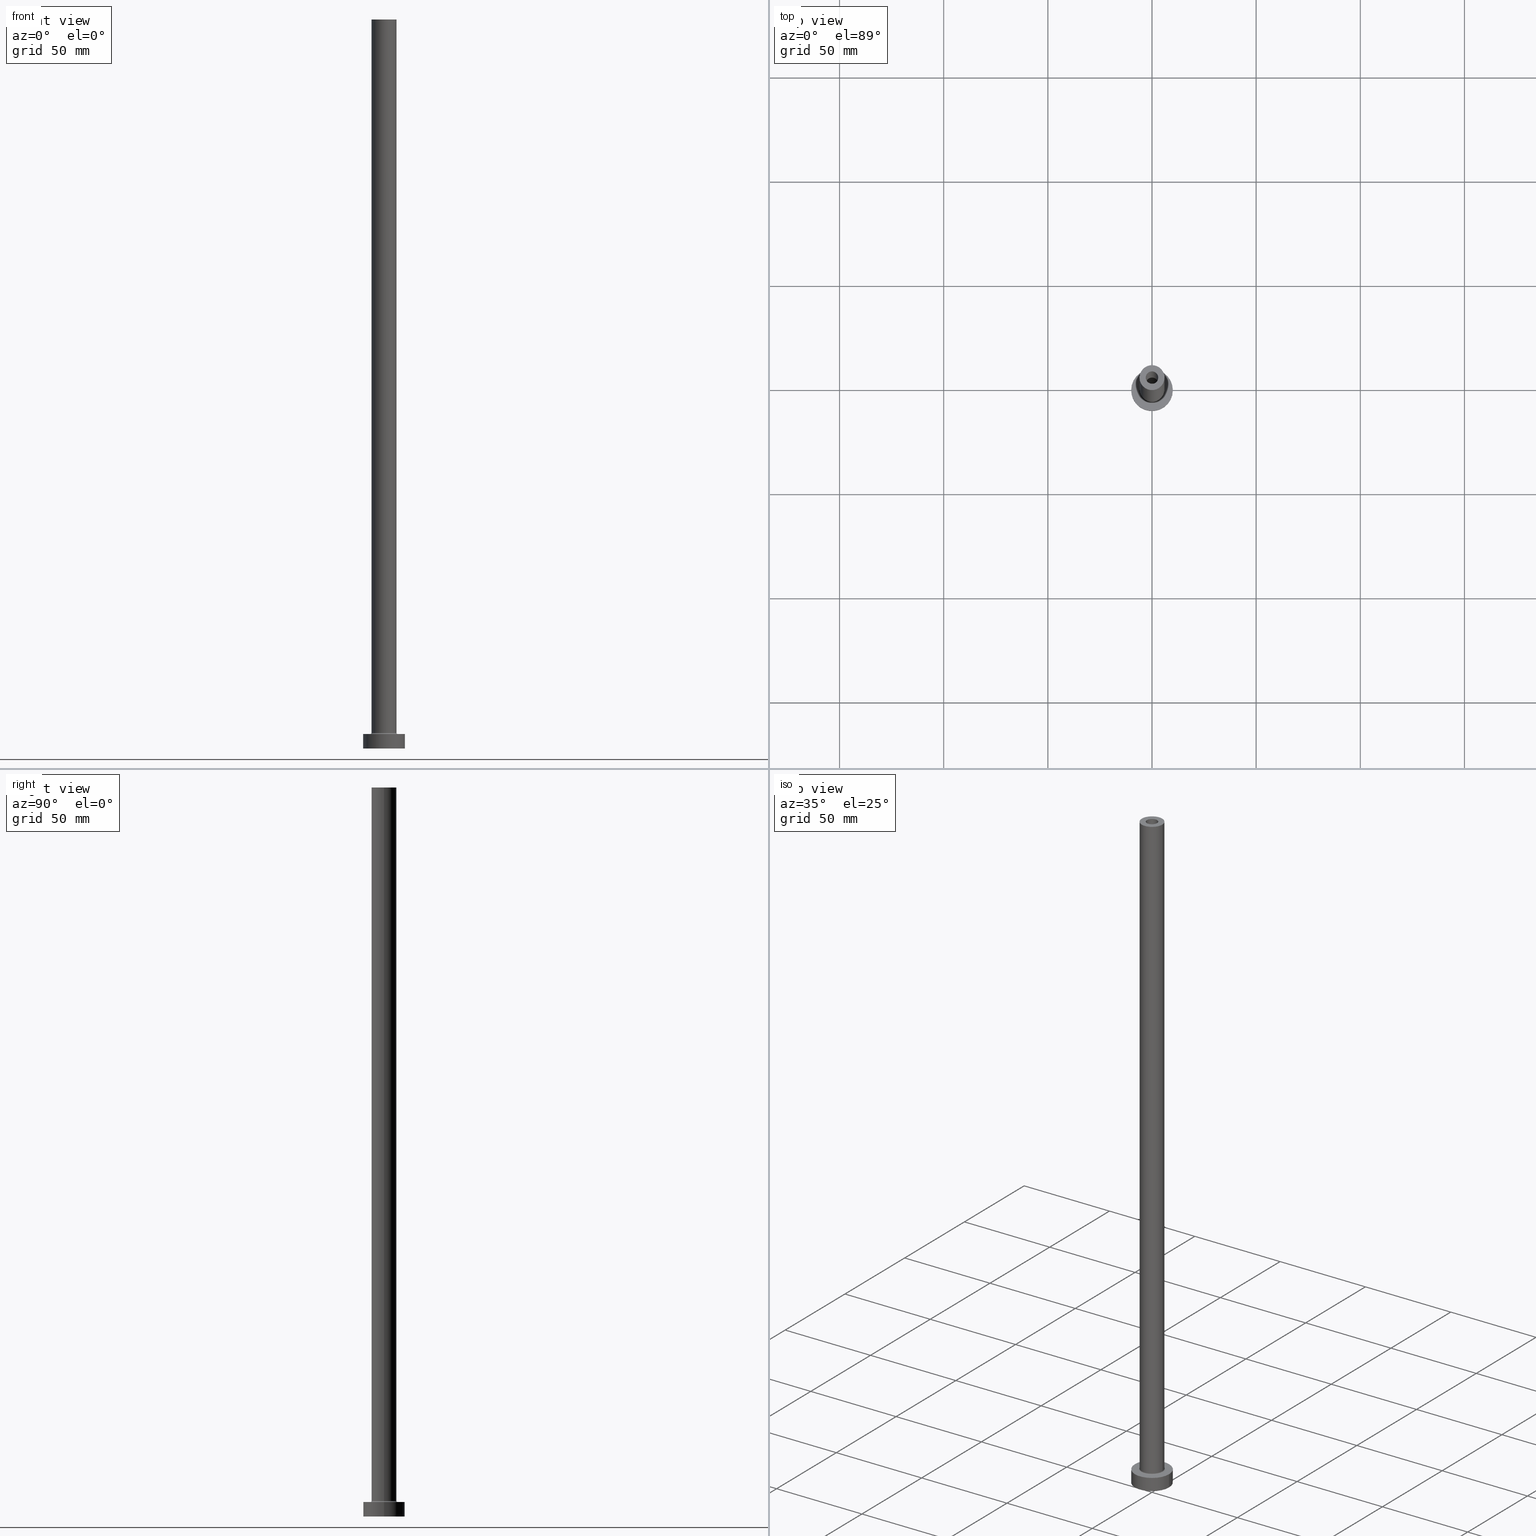
[diagram: canonical four-view strip — front | top / right | iso, engineering-drawing reading convention]
A machine part, canonical four-view strip (front | top / right | iso — engineering-drawing reading convention). The complete STEP part file that produces these views, byte-faithful:
ISO-10303-21;
HEADER;
FILE_DESCRIPTION (( 'STEP AP203' ),
    '1' );
FILE_NAME ('0883.STEP',
    '2023-02-13T15:00:39',
    ( '' ),
    ( '' ),
    'SwSTEP 2.0',
    'SolidWorks 2019',
    '' );
FILE_SCHEMA (( 'CONFIG_CONTROL_DESIGN' ));
ENDSEC;

DATA;
#1 = ADVANCED_FACE ( 'NONE', ( #33, #321 ), #139, .T. ) ;
#2 = CARTESIAN_POINT ( 'NONE',  ( 0.000000000000000000, 0.000000000000000000, 350.0000000000000568 ) ) ;
#3 = ORIENTED_EDGE ( 'NONE', *, *, #85, .F. ) ;
#4 = AXIS2_PLACEMENT_3D ( 'NONE', #180, #324, #219 ) ;
#5 = CARTESIAN_POINT ( 'NONE',  ( -3.150000000000000355, 0.000000000000000000, 313.9095454429505594 ) ) ;
#6 = VERTEX_POINT ( 'NONE', #106 ) ;
#7 = VECTOR ( 'NONE', #161, 1000.000000000000000 ) ;
#8 = DIRECTION ( 'NONE',  ( 0.000000000000000000, 0.000000000000000000, -1.000000000000000000 ) ) ;
#9 = CARTESIAN_POINT ( 'NONE',  ( 0.000000000000000000, 0.000000000000000000, 350.0000000000000568 ) ) ;
#10 = PERSON_AND_ORGANIZATION ( #168, #16 ) ;
#11 = EDGE_LOOP ( 'NONE', ( #116, #394 ) ) ;
#12 = FACE_OUTER_BOUND ( 'NONE', #389, .T. ) ;
#13 = CC_DESIGN_PERSON_AND_ORGANIZATION_ASSIGNMENT ( #22, #446, ( #371 ) ) ;
#14 = DIRECTION ( 'NONE',  ( 1.224646799147353207E-16, 1.000000000000000000, -0.000000000000000000 ) ) ;
#15 = PERSON_AND_ORGANIZATION ( #168, #16 ) ;
#16 = ORGANIZATION ( 'NEUR�EN�', 'NEUR�EN�', '' ) ;
#17 = VERTEX_POINT ( 'NONE', #249 ) ;
#18 = CARTESIAN_POINT ( 'NONE',  ( -3.150000000000000355, 0.000000000000000000, 305.0000000000000568 ) ) ;
#19 = EDGE_CURVE ( 'NONE', #155, #391, #247, .T. ) ;
#20 = DIRECTION ( 'NONE',  ( 1.000000000000000000, 0.000000000000000000, 0.000000000000000000 ) ) ;
#21 = DIRECTION ( 'NONE',  ( -0.000000000000000000, -0.000000000000000000, -1.000000000000000000 ) ) ;
#22 = PERSON_AND_ORGANIZATION ( #168, #16 ) ;
#23 = EDGE_LOOP ( 'NONE', ( #81, #222 ) ) ;
#24 = AXIS2_PLACEMENT_3D ( 'NONE', #279, #414, #32 ) ;
#25 = CYLINDRICAL_SURFACE ( 'NONE', #454, 3.150000000000000355 ) ;
#26 = CYLINDRICAL_SURFACE ( 'NONE', #237, 6.000000000000000888 ) ;
#27 = CIRCLE ( 'NONE', #299, 6.500000000000000888 ) ;
#28 = CIRCLE ( 'NONE', #121, 0.5000000000000004441 ) ;
#29 = ADVANCED_FACE ( 'NONE', ( #316, #323 ), #74, .T. ) ;
#30 = DIRECTION ( 'NONE',  ( 1.000000000000000000, 0.000000000000000000, 0.000000000000000000 ) ) ;
#31 = ORIENTED_EDGE ( 'NONE', *, *, #367, .T. ) ;
#32 = DIRECTION ( 'NONE',  ( -1.000000000000000000, 0.000000000000000000, 0.000000000000000000 ) ) ;
#33 = FACE_BOUND ( 'NONE', #23, .T. ) ;
#34 = DIRECTION ( 'NONE',  ( -1.000000000000000000, 0.000000000000000000, 0.000000000000000000 ) ) ;
#35 = PRODUCT_RELATED_PRODUCT_CATEGORY ( 'detail', '', ( #272 ) ) ;
#36 = AXIS2_PLACEMENT_3D ( 'NONE', #378, #200, #245 ) ;
#37 = ORIENTED_EDGE ( 'NONE', *, *, #178, .F. ) ;
#38 = CARTESIAN_POINT ( 'NONE',  ( 10.00000000000000000, 1.224646799147353256E-15, 0.000000000000000000 ) ) ;
#39 = FACE_OUTER_BOUND ( 'NONE', #76, .T. ) ;
#40 = EDGE_LOOP ( 'NONE', ( #37, #84 ) ) ;
#41 = ORIENTED_EDGE ( 'NONE', *, *, #57, .F. ) ;
#42 = ORIENTED_EDGE ( 'NONE', *, *, #241, .T. ) ;
#43 = DIRECTION ( 'NONE',  ( 0.000000000000000000, -1.000000000000000000, 0.000000000000000000 ) ) ;
#44 = DIRECTION ( 'NONE',  ( 0.000000000000000000, 0.000000000000000000, 1.000000000000000000 ) ) ;
#45 = ORIENTED_EDGE ( 'NONE', *, *, #91, .T. ) ;
#46 = DATE_TIME_ROLE ( 'classification_date' ) ;
#47 = AXIS2_PLACEMENT_3D ( 'NONE', #274, #419, #30 ) ;
#48 = DIRECTION ( 'NONE',  ( -0.000000000000000000, -0.000000000000000000, -1.000000000000000000 ) ) ;
#49 = CALENDAR_DATE ( 2023, 13, 2 ) ;
#50 = EDGE_CURVE ( 'NONE', #396, #68, #276, .T. ) ;
#51 = ORIENTED_EDGE ( 'NONE', *, *, #458, .F. ) ;
#52 = ORIENTED_EDGE ( 'NONE', *, *, #275, .T. ) ;
#53 = CARTESIAN_POINT ( 'NONE',  ( 6.000000000000000888, 7.347880794884120722E-16, 350.0000000000000568 ) ) ;
#54 = DATE_AND_TIME ( #334, #185 ) ;
#55 = VECTOR ( 'NONE', #240, 1000.000000000000000 ) ;
#56 = CALENDAR_DATE ( 2023, 13, 2 ) ;
#57 = EDGE_CURVE ( 'NONE', #17, #291, #239, .T. ) ;
#58 = CARTESIAN_POINT ( 'NONE',  ( -6.500000000000000888, 7.960204194457796463E-16, 7.500000000000007105 ) ) ;
#59 = CC_DESIGN_APPROVAL ( #267, ( #328 ) ) ;
#60 = CARTESIAN_POINT ( 'NONE',  ( 0.000000000000000000, 0.000000000000000000, 7.000000000000000000 ) ) ;
#61 = PLANE ( 'NONE',  #443 ) ;
#62 = CLOSED_SHELL ( 'NONE', ( #416, #423, #345, #199, #283, #196, #1, #450, #431, #29, #314, #75, #208, #409 ) ) ;
#63 = CIRCLE ( 'NONE', #407, 3.150000000000000355 ) ;
#64 = DIRECTION ( 'NONE',  ( 0.000000000000000000, 0.000000000000000000, -1.000000000000000000 ) ) ;
#65 = DESIGN_CONTEXT ( 'detailed design', #191, 'design' ) ;
#66 = ORIENTED_EDGE ( 'NONE', *, *, #445, .F. ) ;
#67 = EDGE_CURVE ( 'NONE', #80, #212, #27, .T. ) ;
#68 = VERTEX_POINT ( 'NONE', #38 ) ;
#69 = CYLINDRICAL_SURFACE ( 'NONE', #188, 3.150000000000000355 ) ;
#70 = CIRCLE ( 'NONE', #383, 6.500000000000000888 ) ;
#71 = CARTESIAN_POINT ( 'NONE',  ( 3.150000000000000355, 3.857637417314163182E-16, 313.9095454429505594 ) ) ;
#72 = PLANE ( 'NONE',  #87 ) ;
#73 = ORIENTED_EDGE ( 'NONE', *, *, #148, .T. ) ;
#74 = PLANE ( 'NONE',  #404 ) ;
#75 = ADVANCED_FACE ( 'NONE', ( #175 ), #69, .F. ) ;
#76 = EDGE_LOOP ( 'NONE', ( #217, #302, #73, #210 ) ) ;
#77 = ORIENTED_EDGE ( 'NONE', *, *, #309, .F. ) ;
#78 = AXIS2_PLACEMENT_3D ( 'NONE', #366, #264, #398 ) ;
#79 = DIRECTION ( 'NONE',  ( 1.000000000000000000, 0.000000000000000000, 0.000000000000000000 ) ) ;
#80 = VERTEX_POINT ( 'NONE', #167 ) ;
#81 = ORIENTED_EDGE ( 'NONE', *, *, #388, .T. ) ;
#82 = DIRECTION ( 'NONE',  ( 0.000000000000000000, 0.000000000000000000, 1.000000000000000000 ) ) ;
#83 = APPROVAL_DATE_TIME ( #434, #214 ) ;
#84 = ORIENTED_EDGE ( 'NONE', *, *, #148, .F. ) ;
#85 = EDGE_CURVE ( 'NONE', #333, #455, #201, .T. ) ;
#86 = DIRECTION ( 'NONE',  ( 1.000000000000000000, 0.000000000000000000, 0.000000000000000000 ) ) ;
#87 = AXIS2_PLACEMENT_3D ( 'NONE', #385, #171, #140 ) ;
#88 = FACE_OUTER_BOUND ( 'NONE', #362, .T. ) ;
#89 = COORDINATED_UNIVERSAL_TIME_OFFSET ( 1, 0, .AHEAD. ) ;
#90 = APPROVAL_ROLE ( '' ) ;
#91 = EDGE_CURVE ( 'NONE', #432, #218, #250, .T. ) ;
#92 = FACE_OUTER_BOUND ( 'NONE', #94, .T. ) ;
#93 = AXIS2_PLACEMENT_3D ( 'NONE', #120, #329, #400 ) ;
#94 = EDGE_LOOP ( 'NONE', ( #51, #386, #297, #436 ) ) ;
#95 = LINE ( 'NONE', #53, #380 ) ;
#96 = DIRECTION ( 'NONE',  ( 0.000000000000000000, 0.000000000000000000, 1.000000000000000000 ) ) ;
#97 = CC_DESIGN_DATE_AND_TIME_ASSIGNMENT ( #229, #370, ( #328 ) ) ;
#98 = CYLINDRICAL_SURFACE ( 'NONE', #293, 3.000000000000000444 ) ;
#99 = DIRECTION ( 'NONE',  ( 1.000000000000000000, 0.000000000000000000, 0.000000000000000000 ) ) ;
#100 = AXIS2_PLACEMENT_3D ( 'NONE', #132, #236, #379 ) ;
#101 = CC_DESIGN_PERSON_AND_ORGANIZATION_ASSIGNMENT ( #15, #296, ( #272 ) ) ;
#102 = CARTESIAN_POINT ( 'NONE',  ( 0.000000000000000000, 0.000000000000000000, 350.0000000000000568 ) ) ;
#103 = CIRCLE ( 'NONE', #447, 3.150000000000000355 ) ;
#104 = ORIENTED_EDGE ( 'NONE', *, *, #388, .F. ) ;
#105 = AXIS2_PLACEMENT_3D ( 'NONE', #58, #14, #194 ) ;
#106 = CARTESIAN_POINT ( 'NONE',  ( -3.150000000000000355, 0.000000000000000000, 0.000000000000000000 ) ) ;
#107 = APPROVAL_ROLE ( '' ) ;
#108 = ORIENTED_EDGE ( 'NONE', *, *, #50, .T. ) ;
#109 = DIRECTION ( 'NONE',  ( 1.000000000000000000, 0.000000000000000000, 0.000000000000000000 ) ) ;
#110 = FACE_OUTER_BOUND ( 'NONE', #125, .T. ) ;
#111 = CARTESIAN_POINT ( 'NONE',  ( 0.000000000000000000, 0.000000000000000000, 0.000000000000000000 ) ) ;
#112 = LOCAL_TIME ( 16, 0, 39.00000000000000000, #89 ) ;
#113 = ORIENTED_EDGE ( 'NONE', *, *, #458, .T. ) ;
#114 = DIRECTION ( 'NONE',  ( 1.000000000000000000, 0.000000000000000000, 0.000000000000000000 ) ) ;
#115 = PERSON_AND_ORGANIZATION_ROLE ( 'creator' ) ;
#116 = ORIENTED_EDGE ( 'NONE', *, *, #50, .F. ) ;
#117 = EDGE_CURVE ( 'NONE', #291, #17, #311, .T. ) ;
#118 = DIRECTION ( 'NONE',  ( 1.000000000000000000, 0.000000000000000000, 0.000000000000000000 ) ) ;
#119 = EDGE_LOOP ( 'NONE', ( #66, #42, #104, #278 ) ) ;
#120 = CARTESIAN_POINT ( 'NONE',  ( 0.000000000000000000, 0.000000000000000000, 0.000000000000000000 ) ) ;
#121 = AXIS2_PLACEMENT_3D ( 'NONE', #215, #43, #8 ) ;
#122 = LINE ( 'NONE', #376, #7 ) ;
#123 = APPROVAL ( #262, 'NEUR�EN�' ) ;
#124 = CALENDAR_DATE ( 2023, 13, 2 ) ;
#125 = EDGE_LOOP ( 'NONE', ( #360, #41, #220, #286 ) ) ;
#126 = AXIS2_PLACEMENT_3D ( 'NONE', #9, #82, #79 ) ;
#127 = DIRECTION ( 'NONE',  ( 1.000000000000000000, 0.000000000000000000, 0.000000000000000000 ) ) ;
#128 = CARTESIAN_POINT ( 'NONE',  ( 6.500000000000000888, 0.000000000000000000, 7.000000000000002665 ) ) ;
#129 = AXIS2_PLACEMENT_3D ( 'NONE', #363, #48, #332 ) ;
#130 = SECURITY_CLASSIFICATION ( '', '', #375 ) ;
#131 = EDGE_CURVE ( 'NONE', #246, #6, #216, .T. ) ;
#132 = CARTESIAN_POINT ( 'NONE',  ( 0.000000000000000000, 0.000000000000000000, 7.500000000000007105 ) ) ;
#133 = DIRECTION ( 'NONE',  ( 1.000000000000000000, 0.000000000000000000, 0.000000000000000000 ) ) ;
#134 = AXIS2_PLACEMENT_3D ( 'NONE', #102, #238, #133 ) ;
#135 = DIRECTION ( 'NONE',  ( 0.000000000000000000, 0.000000000000000000, 1.000000000000000000 ) ) ;
#136 = ORIENTED_EDGE ( 'NONE', *, *, #359, .F. ) ;
#137 = DIRECTION ( 'NONE',  ( 0.000000000000000000, 0.000000000000000000, 1.000000000000000000 ) ) ;
#138 = DIRECTION ( 'NONE',  ( 1.000000000000000000, 0.000000000000000000, 0.000000000000000000 ) ) ;
#139 = PLANE ( 'NONE',  #170 ) ;
#140 = DIRECTION ( 'NONE',  ( 1.000000000000000000, 0.000000000000000000, -0.000000000000000000 ) ) ;
#141 = VECTOR ( 'NONE', #418, 1000.000000000000000 ) ;
#142 = ORIENTED_EDGE ( 'NONE', *, *, #298, .T. ) ;
#143 = CC_DESIGN_DATE_AND_TIME_ASSIGNMENT ( #426, #46, ( #130 ) ) ;
#144 = COORDINATED_UNIVERSAL_TIME_OFFSET ( 1, 0, .AHEAD. ) ;
#145 =( NAMED_UNIT ( * ) PLANE_ANGLE_UNIT ( ) SI_UNIT ( $, .RADIAN. ) );
#146 = VERTEX_POINT ( 'NONE', #186 ) ;
#147 = DIRECTION ( 'NONE',  ( 0.000000000000000000, 0.000000000000000000, -1.000000000000000000 ) ) ;
#148 = EDGE_CURVE ( 'NONE', #391, #6, #453, .T. ) ;
#149 = ORIENTED_EDGE ( 'NONE', *, *, #309, .T. ) ;
#150 = CIRCLE ( 'NONE', #327, 10.00000000000000000 ) ;
#151 = APPROVAL_PERSON_ORGANIZATION ( #331, #123, #107 ) ;
#152 = DIRECTION ( 'NONE',  ( 1.000000000000000000, 0.000000000000000000, 0.000000000000000000 ) ) ;
#153 = EDGE_CURVE ( 'NONE', #246, #155, #103, .T. ) ;
#154 = DIRECTION ( 'NONE',  ( 0.000000000000000000, 0.000000000000000000, 1.000000000000000000 ) ) ;
#155 = VERTEX_POINT ( 'NONE', #183 ) ;
#156 = AXIS2_PLACEMENT_3D ( 'NONE', #169, #96, #138 ) ;
#157 = DIRECTION ( 'NONE',  ( 0.000000000000000000, 0.000000000000000000, 1.000000000000000000 ) ) ;
#158 = CARTESIAN_POINT ( 'NONE',  ( 0.000000000000000000, 0.000000000000000000, 305.0000000000000568 ) ) ;
#159 = DIRECTION ( 'NONE',  ( 1.000000000000000000, 0.000000000000000000, 0.000000000000000000 ) ) ;
#160 = EDGE_CURVE ( 'NONE', #68, #396, #243, .T. ) ;
#161 = DIRECTION ( 'NONE',  ( -0.000000000000000000, -0.000000000000000000, -1.000000000000000000 ) ) ;
#162 = VECTOR ( 'NONE', #211, 1000.000000000000000 ) ;
#163 = FACE_BOUND ( 'NONE', #40, .T. ) ;
#164 = CARTESIAN_POINT ( 'NONE',  ( 10.00000000000000000, 1.224646799147353256E-15, 7.000000000000000000 ) ) ;
#165 = APPROVAL_PERSON_ORGANIZATION ( #438, #214, #261 ) ;
#166 = ORIENTED_EDGE ( 'NONE', *, *, #275, .F. ) ;
#167 = CARTESIAN_POINT ( 'NONE',  ( -6.500000000000000888, 7.960204194457796463E-16, 7.000000000000002665 ) ) ;
#168 = PERSON ( 'NEUR�EN�', 'NEUR�EN�', 'NEUR�EN�', ('NEUR�EN�'), ('NEUR�EN�'), ('NEUR�EN�') ) ;
#169 = CARTESIAN_POINT ( 'NONE',  ( 0.000000000000000000, 0.000000000000000000, 7.000000000000000000 ) ) ;
#170 = AXIS2_PLACEMENT_3D ( 'NONE', #213, #460, #424 ) ;
#171 = DIRECTION ( 'NONE',  ( 0.000000000000000000, 0.000000000000000000, 1.000000000000000000 ) ) ;
#172 = CC_DESIGN_PERSON_AND_ORGANIZATION_ASSIGNMENT ( #10, #115, ( #328 ) ) ;
#173 = ORIENTED_EDGE ( 'NONE', *, *, #91, .F. ) ;
#174 = DIRECTION ( 'NONE',  ( -1.000000000000000000, 0.000000000000000000, 0.000000000000000000 ) ) ;
#175 = FACE_OUTER_BOUND ( 'NONE', #354, .T. ) ;
#176 = DIRECTION ( 'NONE',  ( -0.000000000000000000, -0.000000000000000000, -1.000000000000000000 ) ) ;
#177 = EDGE_LOOP ( 'NONE', ( #350, #166 ) ) ;
#178 = EDGE_CURVE ( 'NONE', #6, #391, #63, .T. ) ;
#179 = ORIENTED_EDGE ( 'NONE', *, *, #117, .F. ) ;
#180 = CARTESIAN_POINT ( 'NONE',  ( 0.000000000000000000, 0.000000000000000000, 350.0000000000000568 ) ) ;
#181 = APPROVAL_DATE_TIME ( #54, #123 ) ;
#182 = ORIENTED_EDGE ( 'NONE', *, *, #377, .T. ) ;
#183 = CARTESIAN_POINT ( 'NONE',  ( 3.150000000000000355, 3.857637417314163182E-16, 305.0000000000000568 ) ) ;
#184 = CIRCLE ( 'NONE', #231, 3.150000000000000355 ) ;
#185 = LOCAL_TIME ( 16, 0, 39.00000000000000000, #226 ) ;
#186 = CARTESIAN_POINT ( 'NONE',  ( 10.00000000000000000, 1.224646799147353256E-15, 7.000000000000000000 ) ) ;
#187 = CARTESIAN_POINT ( 'NONE',  ( -3.000000000000000444, 0.000000000000000000, 305.0000000000000568 ) ) ;
#188 = AXIS2_PLACEMENT_3D ( 'NONE', #352, #348, #174 ) ;
#189 = FACE_BOUND ( 'NONE', #227, .T. ) ;
#190 = ORIENTED_EDGE ( 'NONE', *, *, #263, .T. ) ;
#191 = APPLICATION_CONTEXT ( 'configuration controlled 3d designs of mechanical parts and assemblies' ) ;
#192 = CIRCLE ( 'NONE', #156, 10.00000000000000000 ) ;
#193 = LOCAL_TIME ( 16, 0, 39.00000000000000000, #144 ) ;
#194 = DIRECTION ( 'NONE',  ( -1.000000000000000000, 1.224646799147351482E-16, 0.000000000000000000 ) ) ;
#195 = DIRECTION ( 'NONE',  ( -0.000000000000000000, -0.000000000000000000, -1.000000000000000000 ) ) ;
#196 = ADVANCED_FACE ( 'NONE', ( #392 ), #221, .T. ) ;
#197 = LINE ( 'NONE', #164, #422 ) ;
#198 = CIRCLE ( 'NONE', #36, 6.000000000000000888 ) ;
#199 = ADVANCED_FACE ( 'NONE', ( #12 ), #358, .T. ) ;
#200 = DIRECTION ( 'NONE',  ( 0.000000000000000000, 0.000000000000000000, 1.000000000000000000 ) ) ;
#201 = CIRCLE ( 'NONE', #452, 3.000000000000000444 ) ;
#202 = DIRECTION ( 'NONE',  ( 1.000000000000000000, 0.000000000000000000, 0.000000000000000000 ) ) ;
#203 = ORIENTED_EDGE ( 'NONE', *, *, #335, .T. ) ;
#204 = CIRCLE ( 'NONE', #105, 0.5000000000000004441 ) ;
#205 = PERSON_AND_ORGANIZATION_ROLE ( 'creator' ) ;
#206 = ORIENTED_EDGE ( 'NONE', *, *, #341, .F. ) ;
#207 = ORIENTED_EDGE ( 'NONE', *, *, #367, .F. ) ;
#208 = ADVANCED_FACE ( 'NONE', ( #189, #308 ), #61, .F. ) ;
#209 =( LENGTH_UNIT ( ) NAMED_UNIT ( * ) SI_UNIT ( .MILLI., .METRE. ) );
#210 = ORIENTED_EDGE ( 'NONE', *, *, #131, .F. ) ;
#211 = DIRECTION ( 'NONE',  ( 0.000000000000000000, 0.000000000000000000, -1.000000000000000000 ) ) ;
#212 = VERTEX_POINT ( 'NONE', #128 ) ;
#213 = CARTESIAN_POINT ( 'NONE',  ( 0.000000000000000000, 0.000000000000000000, 7.000000000000000000 ) ) ;
#214 = APPROVAL ( #338, 'NEUR�EN�' ) ;
#215 = CARTESIAN_POINT ( 'NONE',  ( 6.500000000000000888, 0.000000000000000000, 7.500000000000007105 ) ) ;
#216 = LINE ( 'NONE', #5, #300 ) ;
#217 = ORIENTED_EDGE ( 'NONE', *, *, #153, .T. ) ;
#218 = VERTEX_POINT ( 'NONE', #369 ) ;
#219 = DIRECTION ( 'NONE',  ( 1.000000000000000000, 0.000000000000000000, 0.000000000000000000 ) ) ;
#220 = ORIENTED_EDGE ( 'NONE', *, *, #304, .T. ) ;
#221 = CYLINDRICAL_SURFACE ( 'NONE', #129, 10.00000000000000000 ) ;
#222 = ORIENTED_EDGE ( 'NONE', *, *, #67, .T. ) ;
#223 = CIRCLE ( 'NONE', #134, 3.000000000000000444 ) ;
#224 = LOCAL_TIME ( 16, 0, 39.00000000000000000, #365 ) ;
#225 = CC_DESIGN_PERSON_AND_ORGANIZATION_ASSIGNMENT ( #413, #288, ( #130 ) ) ;
#226 = COORDINATED_UNIVERSAL_TIME_OFFSET ( 1, 0, .AHEAD. ) ;
#227 = EDGE_LOOP ( 'NONE', ( #284, #149 ) ) ;
#228 = DIRECTION ( 'NONE',  ( 1.000000000000000000, 0.000000000000000000, -0.000000000000000000 ) ) ;
#229 = DATE_AND_TIME ( #124, #112 ) ;
#230 = EDGE_CURVE ( 'NONE', #258, #396, #442, .T. ) ;
#231 = AXIS2_PLACEMENT_3D ( 'NONE', #232, #444, #127 ) ;
#232 = CARTESIAN_POINT ( 'NONE',  ( 0.000000000000000000, 0.000000000000000000, 305.0000000000000568 ) ) ;
#233 =( NAMED_UNIT ( * ) SI_UNIT ( $, .STERADIAN. ) SOLID_ANGLE_UNIT ( ) );
#234 = AXIS2_PLACEMENT_3D ( 'NONE', #387, #384, #202 ) ;
#235 = CARTESIAN_POINT ( 'NONE',  ( 0.000000000000000000, 0.000000000000000000, 350.0000000000000568 ) ) ;
#236 = DIRECTION ( 'NONE',  ( 0.000000000000000000, 0.000000000000000000, 1.000000000000000000 ) ) ;
#237 = AXIS2_PLACEMENT_3D ( 'NONE', #2, #176, #390 ) ;
#238 = DIRECTION ( 'NONE',  ( 0.000000000000000000, 0.000000000000000000, 1.000000000000000000 ) ) ;
#239 = CIRCLE ( 'NONE', #234, 6.000000000000000888 ) ;
#240 = DIRECTION ( 'NONE',  ( 0.000000000000000000, 0.000000000000000000, -1.000000000000000000 ) ) ;
#241 = EDGE_CURVE ( 'NONE', #357, #80, #204, .T. ) ;
#242 = ORIENTED_EDGE ( 'NONE', *, *, #178, .T. ) ;
#243 = CIRCLE ( 'NONE', #346, 10.00000000000000000 ) ;
#244 = ORIENTED_EDGE ( 'NONE', *, *, #341, .T. ) ;
#245 = DIRECTION ( 'NONE',  ( 1.000000000000000000, 0.000000000000000000, 0.000000000000000000 ) ) ;
#246 = VERTEX_POINT ( 'NONE', #18 ) ;
#247 = LINE ( 'NONE', #71, #55 ) ;
#248 = ORIENTED_EDGE ( 'NONE', *, *, #117, .T. ) ;
#249 = CARTESIAN_POINT ( 'NONE',  ( -6.000000000000000888, 0.000000000000000000, 350.0000000000000568 ) ) ;
#250 = CIRCLE ( 'NONE', #4, 3.000000000000000444 ) ;
#251 = CC_DESIGN_PERSON_AND_ORGANIZATION_ASSIGNMENT ( #306, #205, ( #371 ) ) ;
#252 = ORIENTED_EDGE ( 'NONE', *, *, #377, .F. ) ;
#253 = DIRECTION ( 'NONE',  ( 1.000000000000000000, 0.000000000000000000, 0.000000000000000000 ) ) ;
#254 = LOCAL_TIME ( 16, 0, 39.00000000000000000, #292 ) ;
#255 = ORIENTED_EDGE ( 'NONE', *, *, #67, .F. ) ;
#256 = DIRECTION ( 'NONE',  ( 0.000000000000000000, 0.000000000000000000, 1.000000000000000000 ) ) ;
#257 = MECHANICAL_CONTEXT ( 'NONE', #373, 'mechanical' ) ;
#258 = VERTEX_POINT ( 'NONE', #406 ) ;
#259 = CALENDAR_DATE ( 2023, 13, 2 ) ;
#260 = CARTESIAN_POINT ( 'NONE',  ( 0.000000000000000000, 0.000000000000000000, 0.000000000000000000 ) ) ;
#261 = APPROVAL_ROLE ( '' ) ;
#262 = APPROVAL_STATUS ( 'not_yet_approved' ) ;
#263 = EDGE_CURVE ( 'NONE', #258, #146, #150, .T. ) ;
#264 = DIRECTION ( 'NONE',  ( 0.000000000000000000, 0.000000000000000000, 1.000000000000000000 ) ) ;
#265 = ORIENTED_EDGE ( 'NONE', *, *, #382, .T. ) ;
#266 = CARTESIAN_POINT ( 'NONE',  ( 0.000000000000000000, 0.000000000000000000, 350.0000000000000568 ) ) ;
#267 = APPROVAL ( #402, 'NEUR�EN�' ) ;
#268 = CARTESIAN_POINT ( 'NONE',  ( 3.150000000000000355, 3.857637417314163182E-16, 0.000000000000000000 ) ) ;
#269 = CIRCLE ( 'NONE', #78, 3.000000000000000444 ) ;
#270 = DIRECTION ( 'NONE',  ( -1.000000000000000000, 0.000000000000000000, 0.000000000000000000 ) ) ;
#271 = CARTESIAN_POINT ( 'NONE',  ( 6.000000000000000888, 7.347880794884120722E-16, 7.500000000000007105 ) ) ;
#272 = PRODUCT ( '0883', '0883', '', ( #257 ) ) ;
#273 = APPROVAL_PERSON_ORGANIZATION ( #303, #267, #90 ) ;
#274 = CARTESIAN_POINT ( 'NONE',  ( 0.000000000000000000, 0.000000000000000000, 7.500000000000007105 ) ) ;
#275 = EDGE_CURVE ( 'NONE', #155, #246, #184, .T. ) ;
#276 = CIRCLE ( 'NONE', #440, 10.00000000000000000 ) ;
#277 = ORIENTED_EDGE ( 'NONE', *, *, #131, .T. ) ;
#278 = ORIENTED_EDGE ( 'NONE', *, *, #382, .F. ) ;
#279 = CARTESIAN_POINT ( 'NONE',  ( 0.000000000000000000, 0.000000000000000000, 350.0000000000000568 ) ) ;
#280 = CARTESIAN_POINT ( 'NONE',  ( 3.000000000000000444, 3.673940397442059868E-16, 350.0000000000000568 ) ) ;
#281 = EDGE_LOOP ( 'NONE', ( #441, #248 ) ) ;
#282 = TOROIDAL_SURFACE ( 'NONE', #47, 6.500000000000000888, 0.5000000000000000000 ) ;
#283 = ADVANCED_FACE ( 'NONE', ( #92 ), #374, .T. ) ;
#284 = ORIENTED_EDGE ( 'NONE', *, *, #85, .T. ) ;
#285 = CARTESIAN_POINT ( 'NONE',  ( 0.000000000000000000, 0.000000000000000000, 350.0000000000000568 ) ) ;
#286 = ORIENTED_EDGE ( 'NONE', *, *, #445, .T. ) ;
#287 = CARTESIAN_POINT ( 'NONE',  ( 0.000000000000000000, 0.000000000000000000, 7.000000000000000000 ) ) ;
#288 = PERSON_AND_ORGANIZATION_ROLE ( 'classification_officer' ) ;
#289 = EDGE_LOOP ( 'NONE', ( #136, #295, #425, #108 ) ) ;
#290 = DIRECTION ( 'NONE',  ( -0.000000000000000000, -0.000000000000000000, -1.000000000000000000 ) ) ;
#291 = VERTEX_POINT ( 'NONE', #410 ) ;
#292 = COORDINATED_UNIVERSAL_TIME_OFFSET ( 1, 0, .AHEAD. ) ;
#293 = AXIS2_PLACEMENT_3D ( 'NONE', #235, #64, #34 ) ;
#294 = DIRECTION ( 'NONE',  ( 1.000000000000000000, 0.000000000000000000, 0.000000000000000000 ) ) ;
#295 = ORIENTED_EDGE ( 'NONE', *, *, #263, .F. ) ;
#296 = PERSON_AND_ORGANIZATION_ROLE ( 'design_owner' ) ;
#297 = ORIENTED_EDGE ( 'NONE', *, *, #160, .T. ) ;
#298 = EDGE_CURVE ( 'NONE', #291, #349, #95, .T. ) ;
#299 = AXIS2_PLACEMENT_3D ( 'NONE', #427, #355, #109 ) ;
#300 = VECTOR ( 'NONE', #147, 1000.000000000000000 ) ;
#301 = DIRECTION ( 'NONE',  ( -0.000000000000000000, -0.000000000000000000, -1.000000000000000000 ) ) ;
#302 = ORIENTED_EDGE ( 'NONE', *, *, #19, .T. ) ;
#303 = PERSON_AND_ORGANIZATION ( #168, #16 ) ;
#304 = EDGE_CURVE ( 'NONE', #17, #357, #122, .T. ) ;
#305 = CARTESIAN_POINT ( 'NONE',  ( 0.000000000000000000, 0.000000000000000000, 7.000000000000000000 ) ) ;
#306 = PERSON_AND_ORGANIZATION ( #168, #16 ) ;
#307 = AXIS2_PLACEMENT_3D ( 'NONE', #361, #290, #152 ) ;
#308 = FACE_OUTER_BOUND ( 'NONE', #177, .T. ) ;
#309 = EDGE_CURVE ( 'NONE', #455, #333, #269, .T. ) ;
#310 = DIRECTION ( 'NONE',  ( -0.000000000000000000, -0.000000000000000000, -1.000000000000000000 ) ) ;
#311 = CIRCLE ( 'NONE', #126, 6.000000000000000888 ) ;
#312 = LINE ( 'NONE', #318, #141 ) ;
#313 = UNCERTAINTY_MEASURE_WITH_UNIT (LENGTH_MEASURE( 1.000000000000000082E-05 ), #209, 'distance_accuracy_value', 'NONE');
#314 = ADVANCED_FACE ( 'NONE', ( #88 ), #282, .F. ) ;
#315 = FACE_OUTER_BOUND ( 'NONE', #119, .T. ) ;
#316 = FACE_BOUND ( 'NONE', #429, .T. ) ;
#317 = FACE_OUTER_BOUND ( 'NONE', #439, .T. ) ;
#318 = CARTESIAN_POINT ( 'NONE',  ( -3.000000000000000444, 0.000000000000000000, 350.0000000000000568 ) ) ;
#319 = FACE_OUTER_BOUND ( 'NONE', #11, .T. ) ;
#320 = ORIENTED_EDGE ( 'NONE', *, *, #335, .F. ) ;
#321 = FACE_OUTER_BOUND ( 'NONE', #420, .T. ) ;
#322 = DIRECTION ( 'NONE',  ( 0.000000000000000000, 0.000000000000000000, -1.000000000000000000 ) ) ;
#323 = FACE_OUTER_BOUND ( 'NONE', #281, .T. ) ;
#324 = DIRECTION ( 'NONE',  ( 0.000000000000000000, 0.000000000000000000, 1.000000000000000000 ) ) ;
#325 = APPLICATION_PROTOCOL_DEFINITION ( 'international standard', 'config_control_design', 1994, #373 ) ;
#326 = CARTESIAN_POINT ( 'NONE',  ( 0.000000000000000000, 0.000000000000000000, 0.000000000000000000 ) ) ;
#327 = AXIS2_PLACEMENT_3D ( 'NONE', #305, #154, #20 ) ;
#328 = PRODUCT_DEFINITION ( 'NEZN�M�', '', #371, #65 ) ;
#329 = DIRECTION ( 'NONE',  ( 0.000000000000000000, 0.000000000000000000, 1.000000000000000000 ) ) ;
#330 = AXIS2_PLACEMENT_3D ( 'NONE', #451, #415, #99 ) ;
#331 = PERSON_AND_ORGANIZATION ( #168, #16 ) ;
#332 = DIRECTION ( 'NONE',  ( -1.000000000000000000, 0.000000000000000000, 0.000000000000000000 ) ) ;
#333 = VERTEX_POINT ( 'NONE', #187 ) ;
#334 = CALENDAR_DATE ( 2023, 13, 2 ) ;
#335 = EDGE_CURVE ( 'NONE', #432, #333, #312, .T. ) ;
#336 = VECTOR ( 'NONE', #368, 1000.000000000000000 ) ;
#337 = DIRECTION ( 'NONE',  ( -1.000000000000000000, 0.000000000000000000, 0.000000000000000000 ) ) ;
#338 = APPROVAL_STATUS ( 'not_yet_approved' ) ;
#339 = DIRECTION ( 'NONE',  ( -0.000000000000000000, -0.000000000000000000, -1.000000000000000000 ) ) ;
#340 = CARTESIAN_POINT ( 'NONE',  ( -10.00000000000000000, 0.000000000000000000, 0.000000000000000000 ) ) ;
#341 = EDGE_CURVE ( 'NONE', #218, #432, #223, .T. ) ;
#342 = AXIS2_PLACEMENT_3D ( 'NONE', #60, #195, #270 ) ;
#343 = FACE_OUTER_BOUND ( 'NONE', #347, .T. ) ;
#344 = PRODUCT_DEFINITION_SHAPE ( 'NONE', 'NONE',  #328 ) ;
#345 = ADVANCED_FACE ( 'NONE', ( #315 ), #399, .F. ) ;
#346 = AXIS2_PLACEMENT_3D ( 'NONE', #326, #437, #118 ) ;
#347 = EDGE_LOOP ( 'NONE', ( #252, #244, #203, #77 ) ) ;
#348 = DIRECTION ( 'NONE',  ( 0.000000000000000000, 0.000000000000000000, -1.000000000000000000 ) ) ;
#349 = VERTEX_POINT ( 'NONE', #271 ) ;
#350 = ORIENTED_EDGE ( 'NONE', *, *, #153, .F. ) ;
#351 = SHAPE_DEFINITION_REPRESENTATION ( #344, #353 ) ;
#352 = CARTESIAN_POINT ( 'NONE',  ( 0.000000000000000000, 0.000000000000000000, 313.9095454429505594 ) ) ;
#353 = ADVANCED_BREP_SHAPE_REPRESENTATION ( '0883', ( #403, #93 ), #417 ) ;
#354 = EDGE_LOOP ( 'NONE', ( #461, #52, #277, #242 ) ) ;
#355 = DIRECTION ( 'NONE',  ( -0.000000000000000000, -0.000000000000000000, -1.000000000000000000 ) ) ;
#356 = CC_DESIGN_APPROVAL ( #123, ( #130 ) ) ;
#357 = VERTEX_POINT ( 'NONE', #412 ) ;
#358 = CYLINDRICAL_SURFACE ( 'NONE', #433, 6.000000000000000888 ) ;
#359 = EDGE_CURVE ( 'NONE', #146, #68, #197, .T. ) ;
#360 = ORIENTED_EDGE ( 'NONE', *, *, #298, .F. ) ;
#361 = CARTESIAN_POINT ( 'NONE',  ( 0.000000000000000000, 0.000000000000000000, 0.000000000000000000 ) ) ;
#362 = EDGE_LOOP ( 'NONE', ( #405, #207, #265, #255 ) ) ;
#363 = CARTESIAN_POINT ( 'NONE',  ( 0.000000000000000000, 0.000000000000000000, 7.000000000000000000 ) ) ;
#364 = CIRCLE ( 'NONE', #330, 6.000000000000000888 ) ;
#365 = COORDINATED_UNIVERSAL_TIME_OFFSET ( 1, 0, .AHEAD. ) ;
#366 = CARTESIAN_POINT ( 'NONE',  ( 0.000000000000000000, 0.000000000000000000, 305.0000000000000568 ) ) ;
#367 = EDGE_CURVE ( 'NONE', #349, #357, #364, .T. ) ;
#368 = DIRECTION ( 'NONE',  ( -0.000000000000000000, -0.000000000000000000, -1.000000000000000000 ) ) ;
#369 = CARTESIAN_POINT ( 'NONE',  ( 3.000000000000000444, 3.673940397442059868E-16, 350.0000000000000568 ) ) ;
#370 = DATE_TIME_ROLE ( 'creation_date' ) ;
#371 = PRODUCT_DEFINITION_FORMATION_WITH_SPECIFIED_SOURCE ( 'LIBOVOLN�', '', #272, .NOT_KNOWN. ) ;
#372 = CC_DESIGN_SECURITY_CLASSIFICATION ( #130, ( #371 ) ) ;
#373 = APPLICATION_CONTEXT ( 'configuration controlled 3d designs of mechanical parts and assemblies' ) ;
#374 = CYLINDRICAL_SURFACE ( 'NONE', #342, 10.00000000000000000 ) ;
#375 = SECURITY_CLASSIFICATION_LEVEL ( 'unclassified' ) ;
#376 = CARTESIAN_POINT ( 'NONE',  ( -6.000000000000000888, 0.000000000000000000, 350.0000000000000568 ) ) ;
#377 = EDGE_CURVE ( 'NONE', #218, #455, #381, .T. ) ;
#378 = CARTESIAN_POINT ( 'NONE',  ( 0.000000000000000000, 0.000000000000000000, 7.500000000000007105 ) ) ;
#379 = DIRECTION ( 'NONE',  ( 1.000000000000000000, 0.000000000000000000, 0.000000000000000000 ) ) ;
#380 = VECTOR ( 'NONE', #21, 1000.000000000000000 ) ;
#381 = LINE ( 'NONE', #280, #162 ) ;
#382 = EDGE_CURVE ( 'NONE', #349, #212, #28, .T. ) ;
#383 = AXIS2_PLACEMENT_3D ( 'NONE', #287, #339, #159 ) ;
#384 = DIRECTION ( 'NONE',  ( 0.000000000000000000, 0.000000000000000000, 1.000000000000000000 ) ) ;
#385 = CARTESIAN_POINT ( 'NONE',  ( 0.000000000000000000, 0.000000000000000000, 0.000000000000000000 ) ) ;
#386 = ORIENTED_EDGE ( 'NONE', *, *, #359, .T. ) ;
#387 = CARTESIAN_POINT ( 'NONE',  ( 0.000000000000000000, 0.000000000000000000, 350.0000000000000568 ) ) ;
#388 = EDGE_CURVE ( 'NONE', #212, #80, #70, .T. ) ;
#389 = EDGE_LOOP ( 'NONE', ( #179, #142, #31, #393 ) ) ;
#390 = DIRECTION ( 'NONE',  ( -1.000000000000000000, 0.000000000000000000, 0.000000000000000000 ) ) ;
#391 = VERTEX_POINT ( 'NONE', #268 ) ;
#392 = FACE_OUTER_BOUND ( 'NONE', #289, .T. ) ;
#393 = ORIENTED_EDGE ( 'NONE', *, *, #304, .F. ) ;
#394 = ORIENTED_EDGE ( 'NONE', *, *, #160, .F. ) ;
#395 = CARTESIAN_POINT ( 'NONE',  ( 0.000000000000000000, 0.000000000000000000, 305.0000000000000568 ) ) ;
#396 = VERTEX_POINT ( 'NONE', #340 ) ;
#397 = DIRECTION ( 'NONE',  ( -0.000000000000000000, -0.000000000000000000, -1.000000000000000000 ) ) ;
#398 = DIRECTION ( 'NONE',  ( 1.000000000000000000, 0.000000000000000000, 0.000000000000000000 ) ) ;
#399 = TOROIDAL_SURFACE ( 'NONE', #100, 6.500000000000000888, 0.5000000000000000000 ) ;
#400 = DIRECTION ( 'NONE',  ( 1.000000000000000000, 0.000000000000000000, 0.000000000000000000 ) ) ;
#401 = APPROVAL_DATE_TIME ( #449, #267 ) ;
#402 = APPROVAL_STATUS ( 'not_yet_approved' ) ;
#403 = MANIFOLD_SOLID_BREP ( 'Odebrat vysunut�m4', #62 ) ;
#404 = AXIS2_PLACEMENT_3D ( 'NONE', #285, #135, #430 ) ;
#405 = ORIENTED_EDGE ( 'NONE', *, *, #241, .F. ) ;
#406 = CARTESIAN_POINT ( 'NONE',  ( -10.00000000000000000, 0.000000000000000000, 7.000000000000000000 ) ) ;
#407 = AXIS2_PLACEMENT_3D ( 'NONE', #260, #397, #86 ) ;
#408 = CC_DESIGN_APPROVAL ( #214, ( #371 ) ) ;
#409 = ADVANCED_FACE ( 'NONE', ( #343 ), #411, .F. ) ;
#410 = CARTESIAN_POINT ( 'NONE',  ( 6.000000000000000888, 7.347880794884120722E-16, 350.0000000000000568 ) ) ;
#411 = CYLINDRICAL_SURFACE ( 'NONE', #24, 3.000000000000000444 ) ;
#412 = CARTESIAN_POINT ( 'NONE',  ( -6.000000000000000888, 0.000000000000000000, 7.500000000000007105 ) ) ;
#413 = PERSON_AND_ORGANIZATION ( #168, #16 ) ;
#414 = DIRECTION ( 'NONE',  ( 0.000000000000000000, 0.000000000000000000, -1.000000000000000000 ) ) ;
#415 = DIRECTION ( 'NONE',  ( 0.000000000000000000, 0.000000000000000000, 1.000000000000000000 ) ) ;
#416 = ADVANCED_FACE ( 'NONE', ( #317 ), #98, .F. ) ;
#417 =( GEOMETRIC_REPRESENTATION_CONTEXT ( 3 ) GLOBAL_UNCERTAINTY_ASSIGNED_CONTEXT ( ( #313 ) ) GLOBAL_UNIT_ASSIGNED_CONTEXT ( ( #209, #145, #233 ) ) REPRESENTATION_CONTEXT ( 'NONE', 'WORKASPACE' ) );
#418 = DIRECTION ( 'NONE',  ( 0.000000000000000000, 0.000000000000000000, -1.000000000000000000 ) ) ;
#419 = DIRECTION ( 'NONE',  ( 0.000000000000000000, 0.000000000000000000, 1.000000000000000000 ) ) ;
#420 = EDGE_LOOP ( 'NONE', ( #190, #113 ) ) ;
#421 = CARTESIAN_POINT ( 'NONE',  ( -3.000000000000000444, 0.000000000000000000, 350.0000000000000568 ) ) ;
#422 = VECTOR ( 'NONE', #310, 1000.000000000000000 ) ;
#423 = ADVANCED_FACE ( 'NONE', ( #39 ), #25, .F. ) ;
#424 = DIRECTION ( 'NONE',  ( 1.000000000000000000, 0.000000000000000000, -0.000000000000000000 ) ) ;
#425 = ORIENTED_EDGE ( 'NONE', *, *, #230, .T. ) ;
#426 = DATE_AND_TIME ( #259, #193 ) ;
#427 = CARTESIAN_POINT ( 'NONE',  ( 0.000000000000000000, 0.000000000000000000, 7.000000000000000000 ) ) ;
#428 = DIRECTION ( 'NONE',  ( -1.000000000000000000, 0.000000000000000000, 0.000000000000000000 ) ) ;
#429 = EDGE_LOOP ( 'NONE', ( #173, #206 ) ) ;
#430 = DIRECTION ( 'NONE',  ( 1.000000000000000000, 0.000000000000000000, -0.000000000000000000 ) ) ;
#431 = ADVANCED_FACE ( 'NONE', ( #110 ), #26, .T. ) ;
#432 = VERTEX_POINT ( 'NONE', #421 ) ;
#433 = AXIS2_PLACEMENT_3D ( 'NONE', #266, #301, #337 ) ;
#434 = DATE_AND_TIME ( #49, #224 ) ;
#435 = APPLICATION_PROTOCOL_DEFINITION ( 'international standard', 'config_control_design', 1994, #191 ) ;
#436 = ORIENTED_EDGE ( 'NONE', *, *, #230, .F. ) ;
#437 = DIRECTION ( 'NONE',  ( 0.000000000000000000, 0.000000000000000000, 1.000000000000000000 ) ) ;
#438 = PERSON_AND_ORGANIZATION ( #168, #16 ) ;
#439 = EDGE_LOOP ( 'NONE', ( #45, #182, #3, #320 ) ) ;
#440 = AXIS2_PLACEMENT_3D ( 'NONE', #111, #137, #253 ) ;
#441 = ORIENTED_EDGE ( 'NONE', *, *, #57, .T. ) ;
#442 = LINE ( 'NONE', #448, #336 ) ;
#443 = AXIS2_PLACEMENT_3D ( 'NONE', #158, #157, #228 ) ;
#444 = DIRECTION ( 'NONE',  ( 0.000000000000000000, 0.000000000000000000, 1.000000000000000000 ) ) ;
#445 = EDGE_CURVE ( 'NONE', #357, #349, #198, .T. ) ;
#446 = PERSON_AND_ORGANIZATION_ROLE ( 'design_supplier' ) ;
#447 = AXIS2_PLACEMENT_3D ( 'NONE', #395, #44, #294 ) ;
#448 = CARTESIAN_POINT ( 'NONE',  ( -10.00000000000000000, 0.000000000000000000, 7.000000000000000000 ) ) ;
#449 = DATE_AND_TIME ( #56, #254 ) ;
#450 = ADVANCED_FACE ( 'NONE', ( #163, #319 ), #72, .F. ) ;
#451 = CARTESIAN_POINT ( 'NONE',  ( 0.000000000000000000, 0.000000000000000000, 7.500000000000007105 ) ) ;
#452 = AXIS2_PLACEMENT_3D ( 'NONE', #456, #256, #114 ) ;
#453 = CIRCLE ( 'NONE', #307, 3.150000000000000355 ) ;
#454 = AXIS2_PLACEMENT_3D ( 'NONE', #457, #322, #428 ) ;
#455 = VERTEX_POINT ( 'NONE', #459 ) ;
#456 = CARTESIAN_POINT ( 'NONE',  ( 0.000000000000000000, 0.000000000000000000, 305.0000000000000568 ) ) ;
#457 = CARTESIAN_POINT ( 'NONE',  ( 0.000000000000000000, 0.000000000000000000, 313.9095454429505594 ) ) ;
#458 = EDGE_CURVE ( 'NONE', #146, #258, #192, .T. ) ;
#459 = CARTESIAN_POINT ( 'NONE',  ( 3.000000000000000444, 3.673940397442059868E-16, 305.0000000000000568 ) ) ;
#460 = DIRECTION ( 'NONE',  ( 0.000000000000000000, 0.000000000000000000, 1.000000000000000000 ) ) ;
#461 = ORIENTED_EDGE ( 'NONE', *, *, #19, .F. ) ;
ENDSEC;
END-ISO-10303-21;
